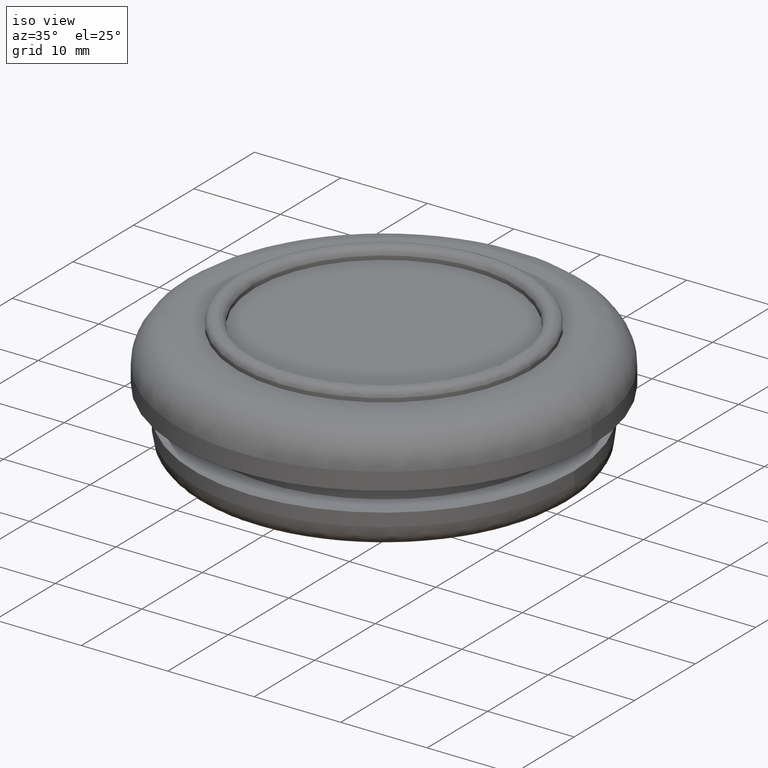
[diagram: clean part render]
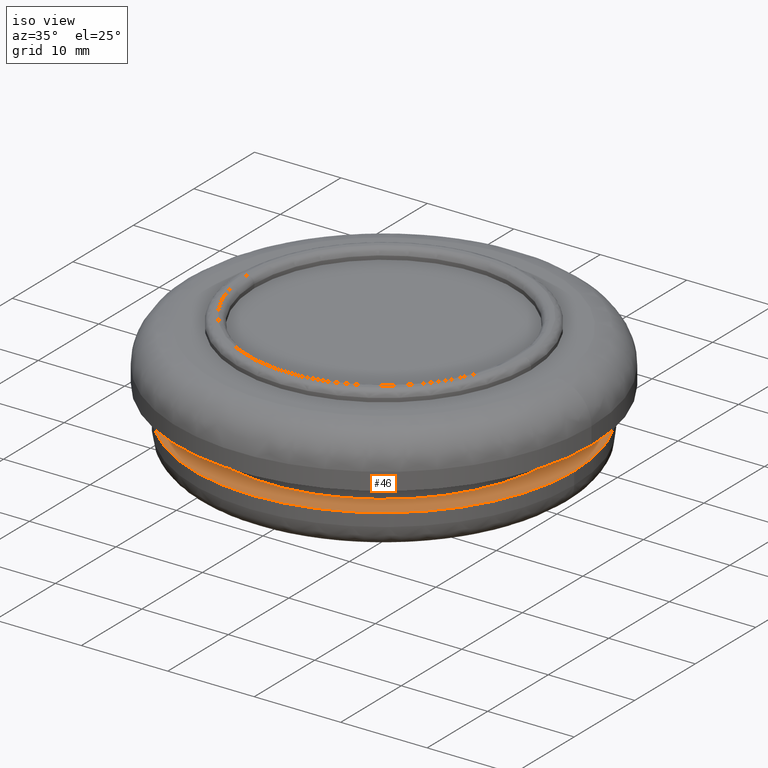
[diagram: same view with one face highlighted and labeled with its STEP entity id]
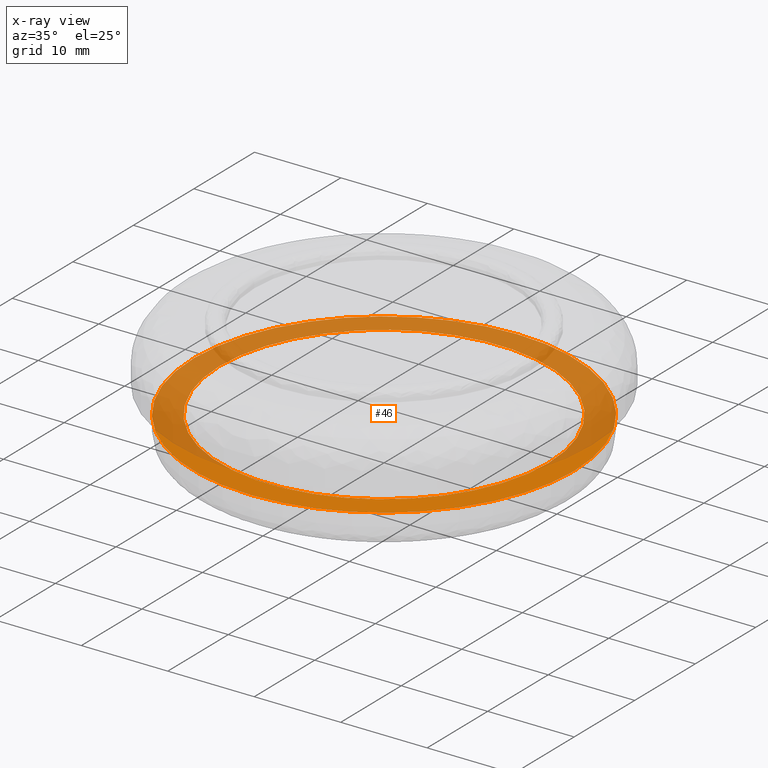
[diagram: x-ray of the same camera — body ghosted, the highlighted face saturated]
A machine part, iso view. The second image highlights one B-rep face of the part: STEP entity #46.
The next image is the same camera in x-ray: the body ghosted, the highlighted face saturated — about 62% of this face is hidden behind the body in this view.
In plain terms, the highlighted planar face has unit normal (-0, 0, -1).
Its self-contained STEP definition (entity closure, byte-faithful):
#46=ADVANCED_FACE('',(#132,#133),#131,.F.);
#131=PLANE('',#379);
#132=FACE_OUTER_BOUND('',#380,.T.);
#133=FACE_BOUND('',#381,.T.);
#376=CARTESIAN_POINT('',(5.06000000000E+001,-4.57261413198E+001,4.00000000000E+000));
#377=DIRECTION('',(-0.00000000000E+000,0.00000000000E+000,-1.00000000000E+000));
#378=DIRECTION('',(-1.00000000000E+000,0.00000000000E+000,0.00000000000E+000));
#379=AXIS2_PLACEMENT_3D('',#376,#377,#378);
#380=EDGE_LOOP('',(#670,#671));
#381=EDGE_LOOP('',(#672,#673));
#670=ORIENTED_EDGE('',*,*,#774,.F.);
#671=ORIENTED_EDGE('',*,*,#775,.F.);
#672=ORIENTED_EDGE('',*,*,#776,.T.);
#673=ORIENTED_EDGE('',*,*,#777,.T.);
#774=EDGE_CURVE('',#946,#947,#948,.T.);
#775=EDGE_CURVE('',#947,#946,#954,.T.);
#776=EDGE_CURVE('',#960,#961,#962,.T.);
#777=EDGE_CURVE('',#961,#960,#968,.T.);
#946=VERTEX_POINT('',#1250);
#947=VERTEX_POINT('',#1251);
#948=CIRCLE('',#1255,2.20000000000E+001);
#954=CIRCLE('',#1259,2.20000000000E+001);
#960=VERTEX_POINT('',#1260);
#961=VERTEX_POINT('',#1261);
#962=CIRCLE('',#1265,1.90000000000E+001);
#968=CIRCLE('',#1269,1.90000000000E+001);
#1250=CARTESIAN_POINT('',(2.20000000000E+001,1.18423789293E-015,4.00000000000E+000));
#1251=CARTESIAN_POINT('',(-2.20000000000E+001,0.00000000000E+000,4.00000000000E+000));
#1252=CARTESIAN_POINT('',(0.00000000000E+000,0.00000000000E+000,4.00000000000E+000));
#1253=DIRECTION('',(-0.00000000000E+000,0.00000000000E+000,-1.00000000000E+000));
#1254=DIRECTION('',(-1.00000000000E+000,-1.22460635382E-016,0.00000000000E+000));
#1255=AXIS2_PLACEMENT_3D('',#1252,#1253,#1254);
#1256=CARTESIAN_POINT('',(0.00000000000E+000,0.00000000000E+000,4.00000000000E+000));
#1257=DIRECTION('',(-0.00000000000E+000,0.00000000000E+000,-1.00000000000E+000));
#1258=DIRECTION('',(-1.00000000000E+000,-1.22460635382E-016,0.00000000000E+000));
#1259=AXIS2_PLACEMENT_3D('',#1256,#1257,#1258);
#1260=CARTESIAN_POINT('',(-1.90000000000E+001,0.00000000000E+000,4.00000000000E+000));
#1261=CARTESIAN_POINT('',(1.90000000000E+001,0.00000000000E+000,4.00000000000E+000));
#1262=CARTESIAN_POINT('',(0.00000000000E+000,0.00000000000E+000,4.00000000000E+000));
#1263=DIRECTION('',(-0.00000000000E+000,0.00000000000E+000,-1.00000000000E+000));
#1264=DIRECTION('',(-1.00000000000E+000,-1.22460635382E-016,0.00000000000E+000));
#1265=AXIS2_PLACEMENT_3D('',#1262,#1263,#1264);
#1266=CARTESIAN_POINT('',(0.00000000000E+000,0.00000000000E+000,4.00000000000E+000));
#1267=DIRECTION('',(-0.00000000000E+000,0.00000000000E+000,-1.00000000000E+000));
#1268=DIRECTION('',(-1.00000000000E+000,-1.22460635382E-016,0.00000000000E+000));
#1269=AXIS2_PLACEMENT_3D('',#1266,#1267,#1268);